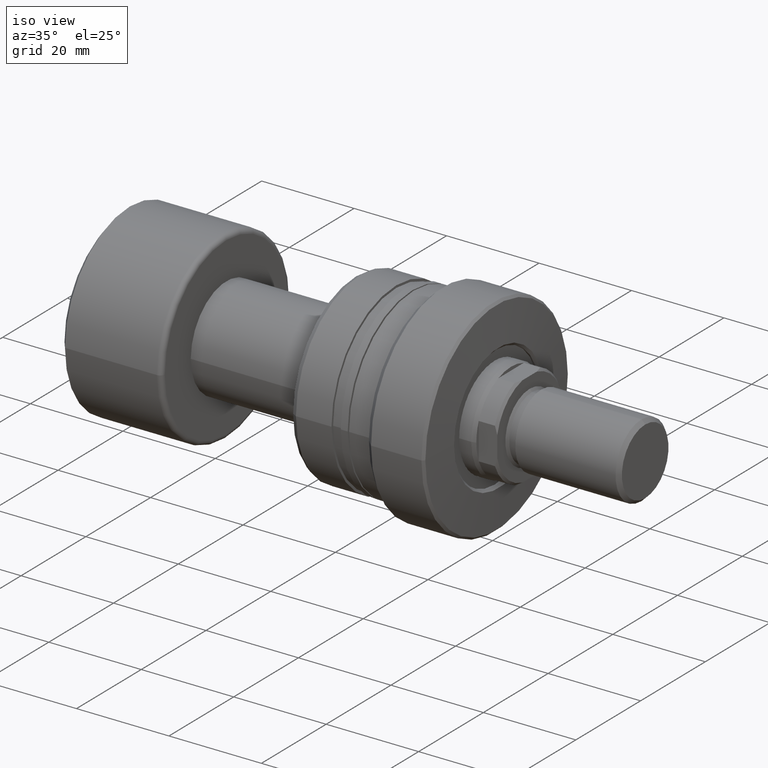
[diagram: clean part render]
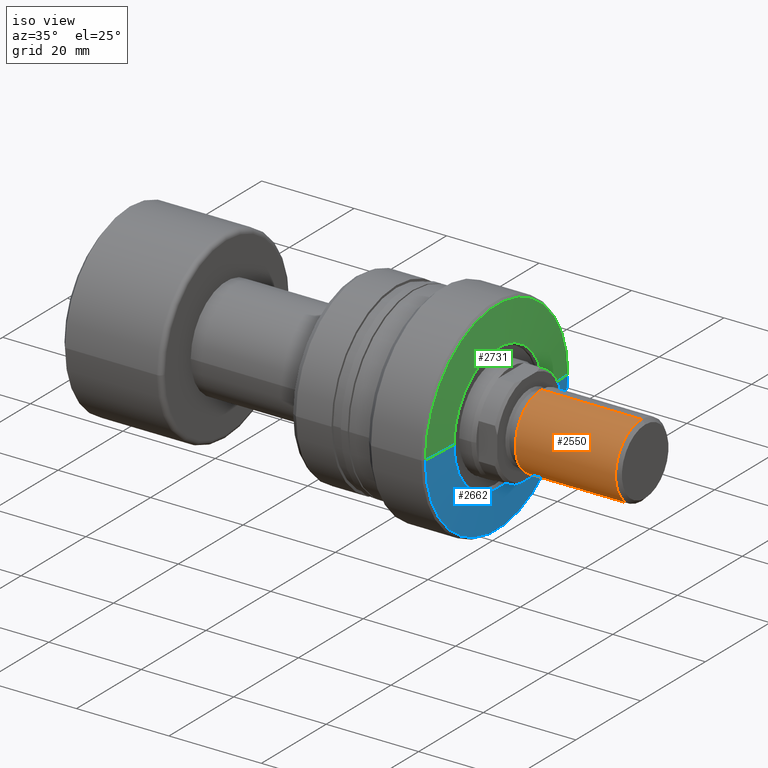
[diagram: same view with three faces highlighted in distinct colors, each labeled with its STEP entity id]
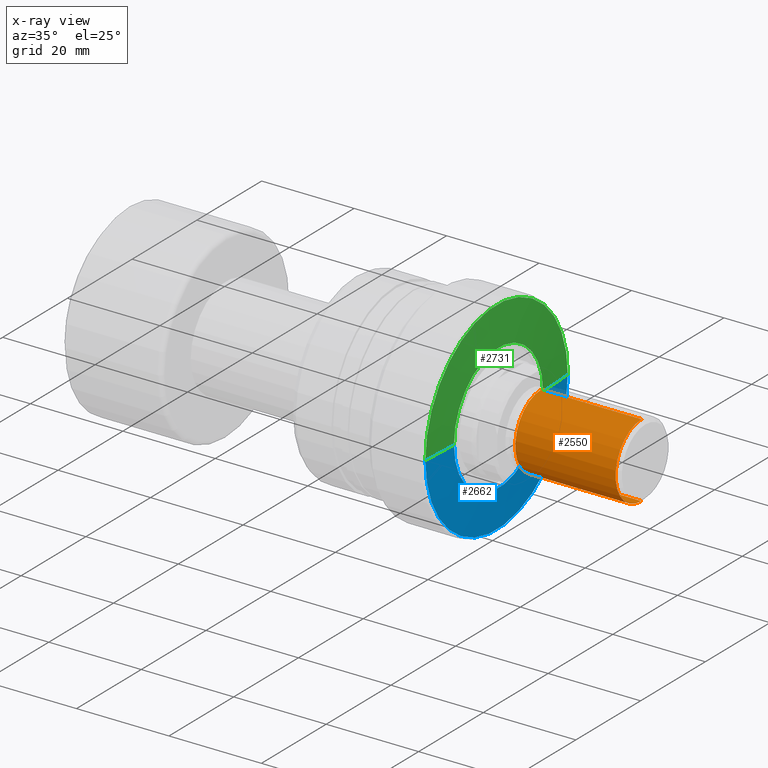
[diagram: x-ray of the same camera — body ghosted, the three highlighted faces saturated]
A machine part, iso view with three faces highlighted in distinct colors.
The next image is the same camera in x-ray (body ghosted, the three faces saturated) — at least one of them is partly hidden behind the body in this view.
Their STEP definitions:

[orange] entity #2550 — the highlighted cylindrical surface (partial cylindrical patch) has radius 8 mm, axis along (1, 0, -0).
#95 = ORIENTED_EDGE ( 'NONE', *, *, #1114, .T. ) ;
#102 = CIRCLE ( 'NONE', #2523, 8.000000000000000000 ) ;
#187 = DIRECTION ( 'NONE',  ( 0.000000000000000000, 0.000000000000000000, 1.000000000000000000 ) ) ;
#197 = VECTOR ( 'NONE', #288, 1000.000000000000000 ) ;
#260 = LINE ( 'NONE', #1810, #197 ) ;
#288 = DIRECTION ( 'NONE',  ( -0.000000000000000000, -0.000000000000000000, -1.000000000000000000 ) ) ;
#301 = EDGE_CURVE ( 'NONE', #2861, #2776, #260, .T. ) ;
#367 = CARTESIAN_POINT ( 'NONE',  ( 0.000000000000000000, 0.000000000000000000, 22.50000000000000000 ) ) ;
#403 = DIRECTION ( 'NONE',  ( -0.000000000000000000, -0.000000000000000000, -1.000000000000000000 ) ) ;
#577 = DIRECTION ( 'NONE',  ( -1.000000000000000000, 0.000000000000000000, 0.000000000000000000 ) ) ;
#594 = CARTESIAN_POINT ( 'NONE',  ( 0.000000000000000000, 0.000000000000000000, 22.50000000000000000 ) ) ;
#623 = ORIENTED_EDGE ( 'NONE', *, *, #301, .F. ) ;
#667 = LINE ( 'NONE', #1998, #2103 ) ;
#707 = VERTEX_POINT ( 'NONE', #952 ) ;
#779 = VERTEX_POINT ( 'NONE', #2310 ) ;
#812 = CYLINDRICAL_SURFACE ( 'NONE', #2387, 8.000000000000000000 ) ;
#952 = CARTESIAN_POINT ( 'NONE',  ( -8.000000000000000000, 0.000000000000000000, 0.8000000000000160316 ) ) ;
#990 = CARTESIAN_POINT ( 'NONE',  ( 8.000000000000000000, 9.797174393178823685E-16, 0.8000000000000160316 ) ) ;
#1004 = EDGE_LOOP ( 'NONE', ( #623, #2796, #95, #1100 ) ) ;
#1100 = ORIENTED_EDGE ( 'NONE', *, *, #2465, .T. ) ;
#1114 = EDGE_CURVE ( 'NONE', #779, #707, #667, .T. ) ;
#1237 = CIRCLE ( 'NONE', #2856, 8.000000000000000000 ) ;
#1300 = DIRECTION ( 'NONE',  ( 1.000000000000000000, 0.000000000000000000, 0.000000000000000000 ) ) ;
#1810 = CARTESIAN_POINT ( 'NONE',  ( 8.000000000000000000, 9.797174393178823685E-16, 22.50000000000000000 ) ) ;
#1998 = CARTESIAN_POINT ( 'NONE',  ( -8.000000000000000000, 0.000000000000000000, 22.50000000000000000 ) ) ;
#2073 = EDGE_CURVE ( 'NONE', #779, #2861, #102, .T. ) ;
#2078 = CARTESIAN_POINT ( 'NONE',  ( 8.000000000000000000, 9.797174393178823685E-16, 22.50000000000000000 ) ) ;
#2103 = VECTOR ( 'NONE', #403, 1000.000000000000000 ) ;
#2310 = CARTESIAN_POINT ( 'NONE',  ( -8.000000000000000000, 0.000000000000000000, 22.50000000000000000 ) ) ;
#2380 = FACE_OUTER_BOUND ( 'NONE', #1004, .T. ) ;
#2387 = AXIS2_PLACEMENT_3D ( 'NONE', #367, #2850, #577 ) ;
#2401 = CARTESIAN_POINT ( 'NONE',  ( 0.000000000000000000, 0.000000000000000000, 0.8000000000000160316 ) ) ;
#2465 = EDGE_CURVE ( 'NONE', #707, #2776, #1237, .T. ) ;
#2523 = AXIS2_PLACEMENT_3D ( 'NONE', #594, #187, #1300 ) ;
#2550 = ADVANCED_FACE ( 'NONE', ( #2380 ), #812, .T. ) ;
#2571 = DIRECTION ( 'NONE',  ( -0.000000000000000000, -0.000000000000000000, 1.000000000000000000 ) ) ;
#2587 = DIRECTION ( 'NONE',  ( 1.000000000000000000, 0.000000000000000000, 0.000000000000000000 ) ) ;
#2776 = VERTEX_POINT ( 'NONE', #990 ) ;
#2796 = ORIENTED_EDGE ( 'NONE', *, *, #2073, .F. ) ;
#2850 = DIRECTION ( 'NONE',  ( -0.000000000000000000, -0.000000000000000000, -1.000000000000000000 ) ) ;
#2856 = AXIS2_PLACEMENT_3D ( 'NONE', #2401, #2571, #2587 ) ;
#2861 = VERTEX_POINT ( 'NONE', #2078 ) ;

[blue] entity #2662 — the highlighted conical surface has half-angle 87.138 deg.
#73 = CARTESIAN_POINT ( 'NONE',  ( -0.6874688084724417392, 13.74937616943901908, 2.189017954870906259E-15 ) ) ;
#230 = CARTESIAN_POINT ( 'NONE',  ( -1.100000000000665556, -21.99999999999997158, 0.000000000000000000 ) ) ;
#318 = CARTESIAN_POINT ( 'NONE',  ( -1.100000000000799227, 22.00000000000015277, 2.694222958124184698E-15 ) ) ;
#326 = VECTOR ( 'NONE', #1307, 1000.000000000000114 ) ;
#335 = AXIS2_PLACEMENT_3D ( 'NONE', #1545, #444, #2411 ) ;
#382 = CIRCLE ( 'NONE', #2027, 22.00000000000006040 ) ;
#444 = DIRECTION ( 'NONE',  ( -1.000000000000000000, -3.039592211588219332E-15, 0.000000000000000000 ) ) ;
#602 = DIRECTION ( 'NONE',  ( 1.000000000000000000, 3.039592211588219332E-15, -0.000000000000000000 ) ) ;
#696 = DIRECTION ( 'NONE',  ( -1.000000000000000000, -3.039592211588226037E-15, 0.000000000000000000 ) ) ;
#766 = EDGE_CURVE ( 'NONE', #1355, #1910, #1030, .T. ) ;
#1014 = DIRECTION ( 'NONE',  ( -0.04993761694392855749, 0.9987523388778428712, 1.223118854947682994E-16 ) ) ;
#1030 = LINE ( 'NONE', #318, #1876 ) ;
#1133 = FACE_OUTER_BOUND ( 'NONE', #2224, .T. ) ;
#1286 = AXIS2_PLACEMENT_3D ( 'NONE', #2049, #696, #1622 ) ;
#1307 = DIRECTION ( 'NONE',  ( -0.04993761694392248596, -0.9987523388778432043, 0.000000000000000000 ) ) ;
#1355 = VERTEX_POINT ( 'NONE', #73 ) ;
#1385 = EDGE_CURVE ( 'NONE', #1355, #1660, #2203, .T. ) ;
#1492 = CARTESIAN_POINT ( 'NONE',  ( -1.100000000000732392, 8.869536993631697946E-14, 0.000000000000000000 ) ) ;
#1545 = CARTESIAN_POINT ( 'NONE',  ( -1.100000000000732392, 8.869536993631697946E-14, 0.000000000000000000 ) ) ;
#1622 = DIRECTION ( 'NONE',  ( -3.035903820383676297E-15, 1.000000000000000000, 0.000000000000000000 ) ) ;
#1660 = VERTEX_POINT ( 'NONE', #2867 ) ;
#1704 = EDGE_CURVE ( 'NONE', #1660, #1707, #2196, .T. ) ;
#1707 = VERTEX_POINT ( 'NONE', #1968 ) ;
#1876 = VECTOR ( 'NONE', #1014, 1000.000000000000000 ) ;
#1910 = VERTEX_POINT ( 'NONE', #2314 ) ;
#1968 = CARTESIAN_POINT ( 'NONE',  ( -1.100000000000665556, -21.99999999999997158, 0.000000000000000000 ) ) ;
#2027 = AXIS2_PLACEMENT_3D ( 'NONE', #1492, #602, #2181 ) ;
#2028 = CONICAL_SURFACE ( 'NONE', #335, 22.00000000000006040, 1.520837931072920535 ) ;
#2049 = CARTESIAN_POINT ( 'NONE',  ( -0.6874688084723999948, 8.994929653312370924E-14, 0.000000000000000000 ) ) ;
#2181 = DIRECTION ( 'NONE',  ( -3.035766082959404132E-15, 1.000000000000000000, 0.000000000000000000 ) ) ;
#2196 = LINE ( 'NONE', #230, #326 ) ;
#2203 = CIRCLE ( 'NONE', #1286, 13.74937616943892849 ) ;
#2224 = EDGE_LOOP ( 'NONE', ( #2777, #2383, #2755, #2562 ) ) ;
#2314 = CARTESIAN_POINT ( 'NONE',  ( -1.100000000000799227, 22.00000000000015277, 2.724839128102870063E-15 ) ) ;
#2383 = ORIENTED_EDGE ( 'NONE', *, *, #1385, .T. ) ;
#2411 = DIRECTION ( 'NONE',  ( 3.035766082959404132E-15, -1.000000000000000000, 0.000000000000000000 ) ) ;
#2501 = EDGE_CURVE ( 'NONE', #1707, #1910, #382, .T. ) ;
#2562 = ORIENTED_EDGE ( 'NONE', *, *, #2501, .T. ) ;
#2662 = ADVANCED_FACE ( 'NONE', ( #1133 ), #2028, .T. ) ;
#2755 = ORIENTED_EDGE ( 'NONE', *, *, #1704, .T. ) ;
#2777 = ORIENTED_EDGE ( 'NONE', *, *, #766, .F. ) ;
#2867 = CARTESIAN_POINT ( 'NONE',  ( -0.6874688084723582504, -13.74937616943883789, 0.000000000000000000 ) ) ;

[green] entity #2731 — the highlighted conical surface has half-angle 87.138 deg.
#73 = CARTESIAN_POINT ( 'NONE',  ( -0.6874688084724417392, 13.74937616943901908, 2.189017954870906259E-15 ) ) ;
#130 = ORIENTED_EDGE ( 'NONE', *, *, #450, .T. ) ;
#225 = ORIENTED_EDGE ( 'NONE', *, *, #1406, .T. ) ;
#230 = CARTESIAN_POINT ( 'NONE',  ( -1.100000000000665556, -21.99999999999997158, 0.000000000000000000 ) ) ;
#318 = CARTESIAN_POINT ( 'NONE',  ( -1.100000000000799227, 22.00000000000015277, 2.694222958124184698E-15 ) ) ;
#326 = VECTOR ( 'NONE', #1307, 1000.000000000000114 ) ;
#450 = EDGE_CURVE ( 'NONE', #1660, #1355, #1599, .T. ) ;
#474 = ORIENTED_EDGE ( 'NONE', *, *, #766, .T. ) ;
#590 = DIRECTION ( 'NONE',  ( -3.035903820383676297E-15, 1.000000000000000000, 0.000000000000000000 ) ) ;
#701 = CIRCLE ( 'NONE', #1413, 22.00000000000006040 ) ;
#713 = DIRECTION ( 'NONE',  ( 1.000000000000000000, 3.039592211588219332E-15, -0.000000000000000000 ) ) ;
#766 = EDGE_CURVE ( 'NONE', #1355, #1910, #1030, .T. ) ;
#810 = AXIS2_PLACEMENT_3D ( 'NONE', #908, #883, #2663 ) ;
#883 = DIRECTION ( 'NONE',  ( -1.000000000000000000, -3.039592211588219332E-15, 0.000000000000000000 ) ) ;
#908 = CARTESIAN_POINT ( 'NONE',  ( -1.100000000000732392, 8.869536993631697946E-14, 0.000000000000000000 ) ) ;
#1014 = DIRECTION ( 'NONE',  ( -0.04993761694392855749, 0.9987523388778428712, 1.223118854947682994E-16 ) ) ;
#1030 = LINE ( 'NONE', #318, #1876 ) ;
#1139 = CONICAL_SURFACE ( 'NONE', #810, 22.00000000000006040, 1.520837931072920535 ) ;
#1239 = ORIENTED_EDGE ( 'NONE', *, *, #1704, .F. ) ;
#1307 = DIRECTION ( 'NONE',  ( -0.04993761694392248596, -0.9987523388778432043, 0.000000000000000000 ) ) ;
#1355 = VERTEX_POINT ( 'NONE', #73 ) ;
#1406 = EDGE_CURVE ( 'NONE', #1910, #1707, #701, .T. ) ;
#1413 = AXIS2_PLACEMENT_3D ( 'NONE', #2490, #713, #2308 ) ;
#1562 = FACE_OUTER_BOUND ( 'NONE', #2790, .T. ) ;
#1599 = CIRCLE ( 'NONE', #2672, 13.74937616943892849 ) ;
#1660 = VERTEX_POINT ( 'NONE', #2867 ) ;
#1704 = EDGE_CURVE ( 'NONE', #1660, #1707, #2196, .T. ) ;
#1707 = VERTEX_POINT ( 'NONE', #1968 ) ;
#1876 = VECTOR ( 'NONE', #1014, 1000.000000000000000 ) ;
#1910 = VERTEX_POINT ( 'NONE', #2314 ) ;
#1968 = CARTESIAN_POINT ( 'NONE',  ( -1.100000000000665556, -21.99999999999997158, 0.000000000000000000 ) ) ;
#2126 = DIRECTION ( 'NONE',  ( -1.000000000000000000, -3.039592211588226037E-15, 0.000000000000000000 ) ) ;
#2196 = LINE ( 'NONE', #230, #326 ) ;
#2308 = DIRECTION ( 'NONE',  ( -3.035766082959404132E-15, 1.000000000000000000, 0.000000000000000000 ) ) ;
#2314 = CARTESIAN_POINT ( 'NONE',  ( -1.100000000000799227, 22.00000000000015277, 2.724839128102870063E-15 ) ) ;
#2490 = CARTESIAN_POINT ( 'NONE',  ( -1.100000000000732392, 8.869536993631697946E-14, 0.000000000000000000 ) ) ;
#2542 = CARTESIAN_POINT ( 'NONE',  ( -0.6874688084723999948, 8.994929653312370924E-14, 0.000000000000000000 ) ) ;
#2663 = DIRECTION ( 'NONE',  ( 3.035766082959404132E-15, -1.000000000000000000, 0.000000000000000000 ) ) ;
#2672 = AXIS2_PLACEMENT_3D ( 'NONE', #2542, #2126, #590 ) ;
#2731 = ADVANCED_FACE ( 'NONE', ( #1562 ), #1139, .T. ) ;
#2790 = EDGE_LOOP ( 'NONE', ( #130, #474, #225, #1239 ) ) ;
#2867 = CARTESIAN_POINT ( 'NONE',  ( -0.6874688084723582504, -13.74937616943883789, 0.000000000000000000 ) ) ;